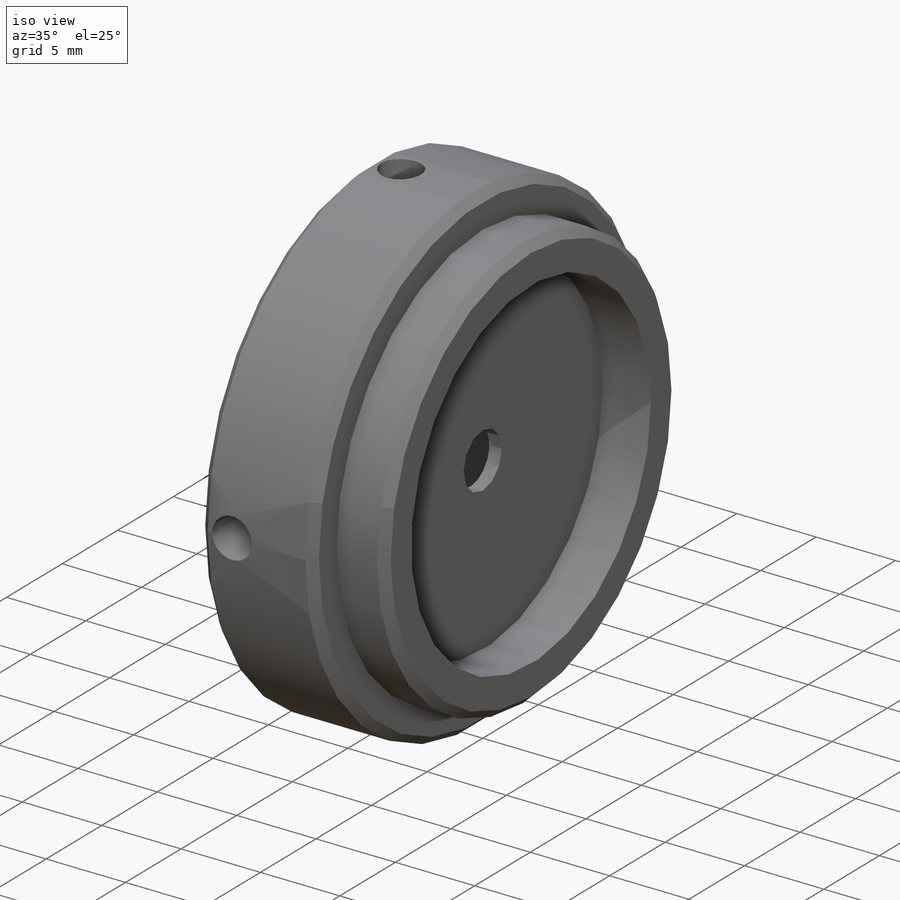
[diagram: iso view]
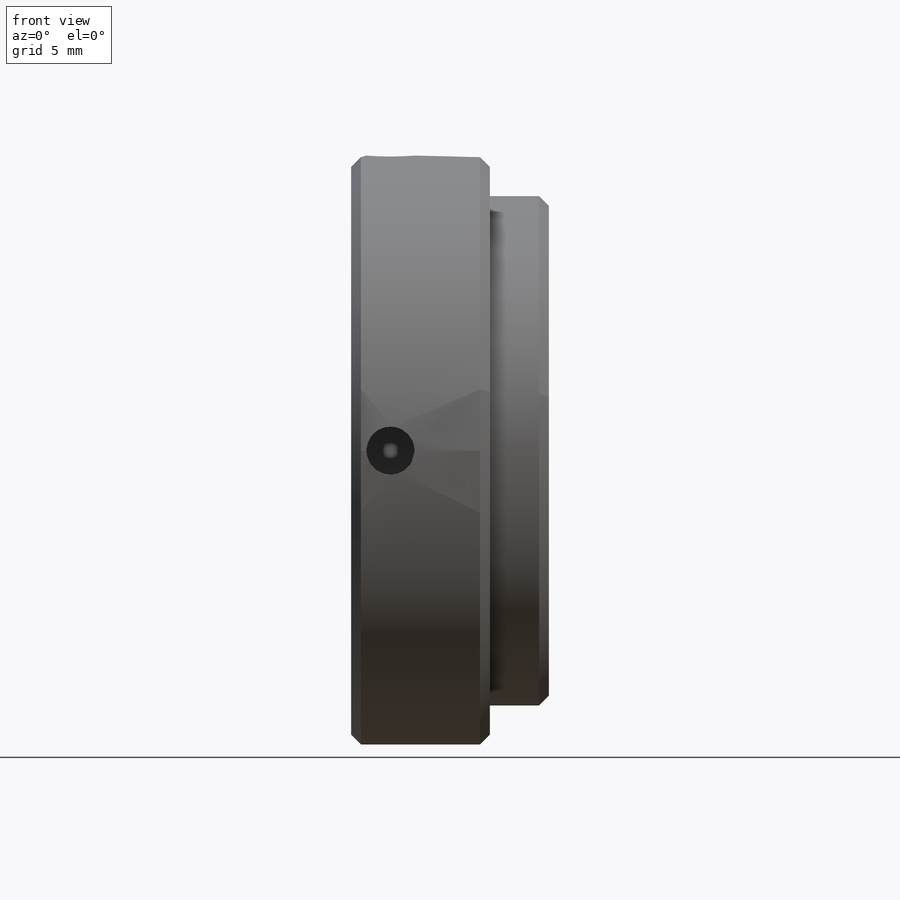
[diagram: front view]
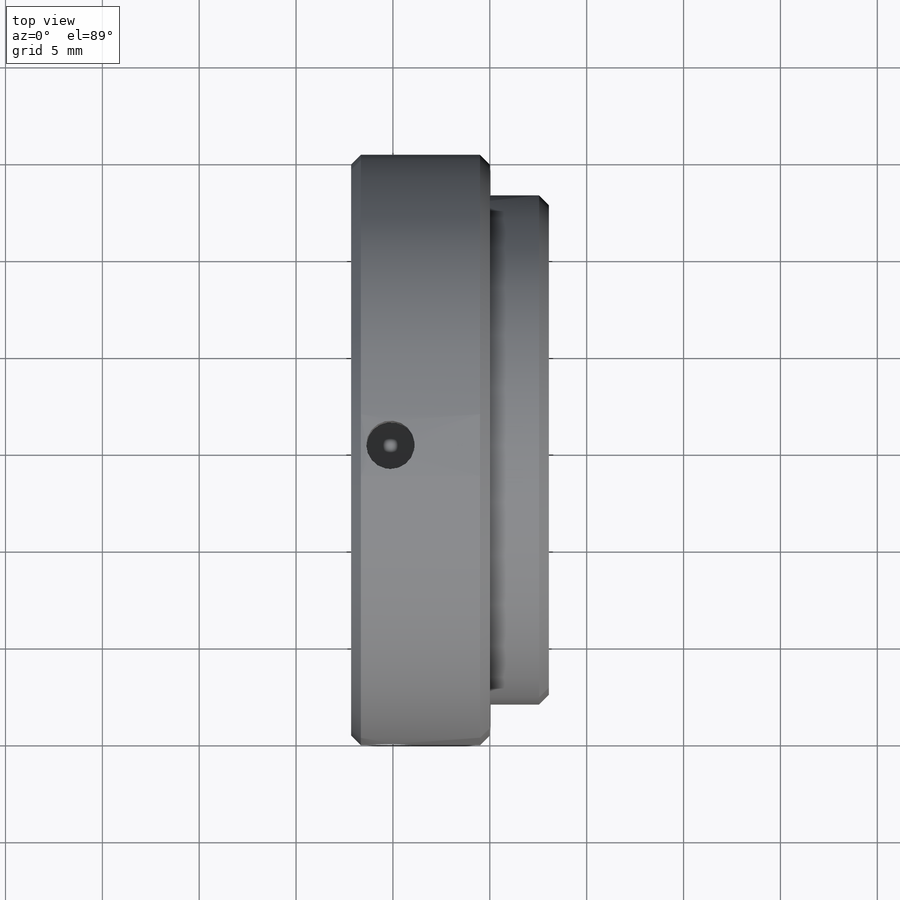
[diagram: top view]
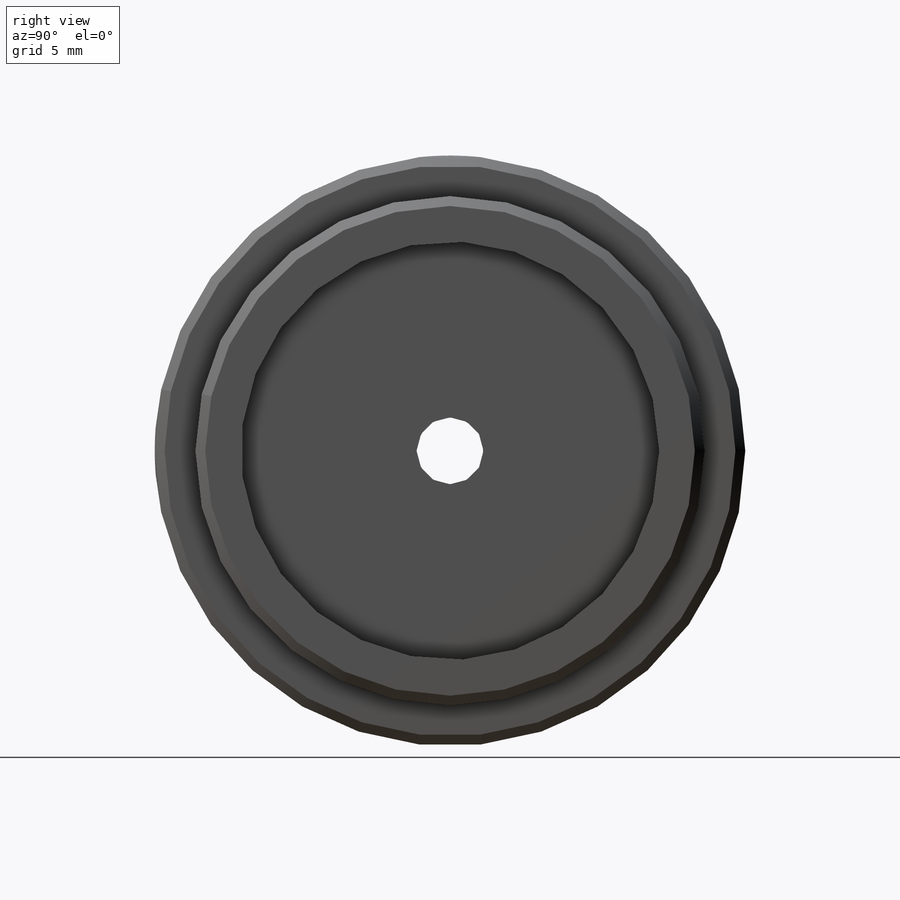
[diagram: right view]
SOLIDWORKS PART (.sldprt)
format: sldprt  version: not decoded by parser v0  size: 378,880 bytes
history: native  units: mm
features: sketch x4, material x1, revolve x1, hole x1, chamfer x1, cut_extrude x1 + 1 further entry (+11 scaffold rows collapsed)
feature tree (21):
  scaffold x11  (default folders/planes/origin — collapsed)
  material  "6061-T6 Al"
  "Origin"  ID=392984584
  sketch  "Sketch1"  dims[c1.D1=2.0066mm c1.D2=0.381mm c1.D3=19.05mm c1.D4=4.064mm c1.D5=7.1628mm c2.D2=0.381mm c2.D6=~5.104469mm c3.D6=60.0deg c3.D7=30.48mm c3.D8=21.59mm c3.D9=~2.47353mm c4.D9=90.0deg c5.D9=3.048mm c5.D10=26.289mm c5.D11=1.016mm c5.D12=0.762mm]
  revolve  "Revolve1"  Angle=360deg
  hole  "M3x0.5 Tapped Hole1"  Diameter=2.5mm Depth=5.715mm
  sketch  "3DSketch1"  dims[D1=2.032mm]
  sketch  "Sketch2"  dims[hole-wizard template sketch: 60 standard entries collapsed; hole parameters kept: c18.Thru Tap Drill Depth=5.715mm]
  chamfer  "Chamfer1"  Distance=0.508mm Angle=45deg
  sketch  "Sketch3"  dims[D1=3.4544mm]
  cut_extrude  "Cut-Extrude1"  [1 undecoded]
decode coverage: 7 of 8 modeling features carry decoded parameters; 1 rows unclassified (native names shown)
note: ~ marks probable driven/reference dimensions
note: 1 parameter value undecoded
note: suppression state not decoded; provenance and decode notes live in map.json
